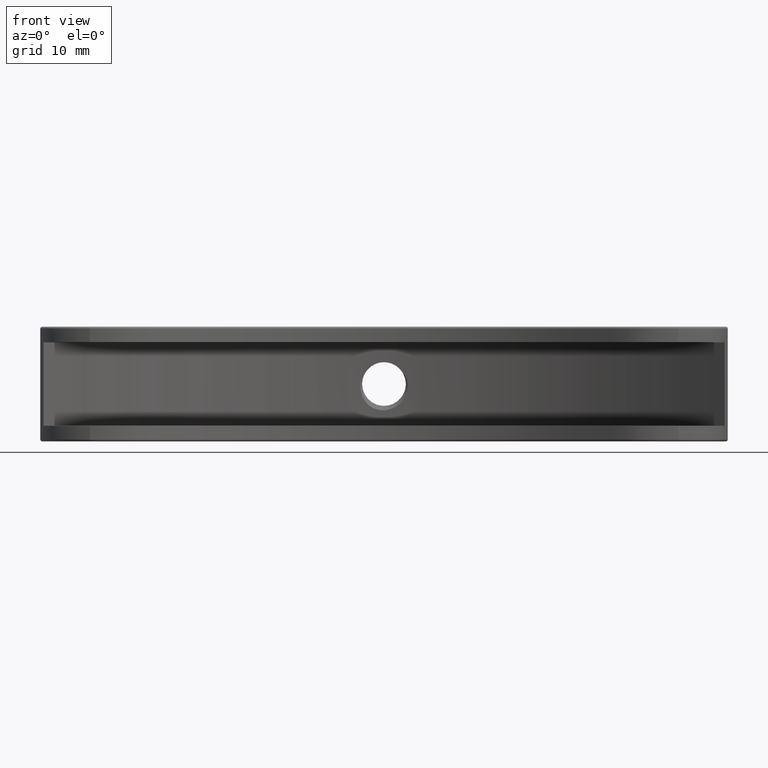
[diagram: clean part render]
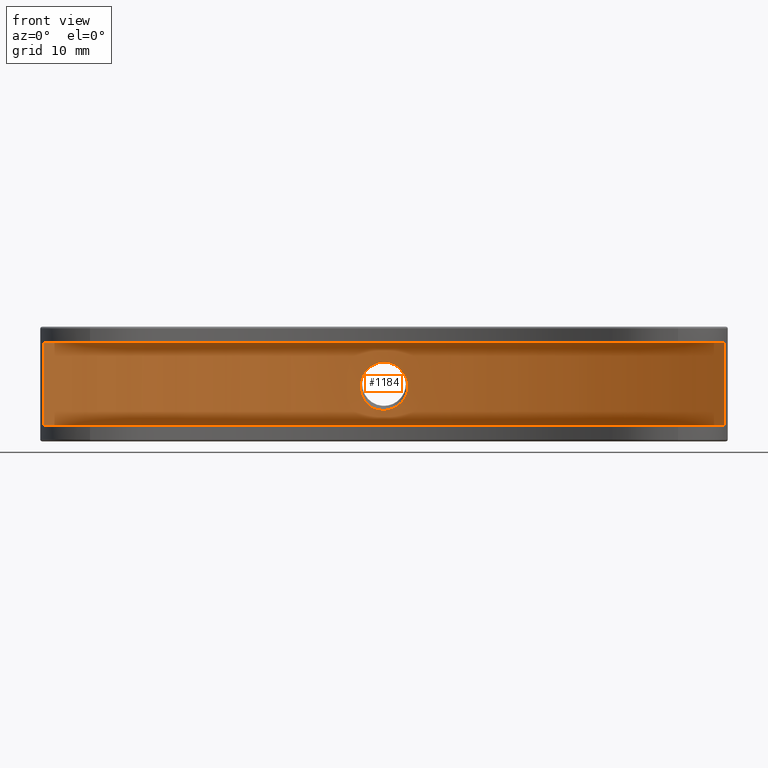
[diagram: same view with one face highlighted and labeled with its STEP entity id]
A machine part, front view. The second image highlights one B-rep face of the part: STEP entity #1184.
In plain terms, the highlighted cylindrical surface (partial cylindrical patch) has radius 47.3818 mm, axis along (0, 0, -1).
Its self-contained STEP definition (entity closure, byte-faithful):
#43 = CARTESIAN_POINT ( 'NONE',  ( 2.003208782141407518, 1.613770401412911504, 4.172705104345269866 ) ) ;
#66 = CARTESIAN_POINT ( 'NONE',  ( 1.080399062459326265, 1.643748688884738574, 3.282363655833562266 ) ) ;
#110 = CARTESIAN_POINT ( 'NONE',  ( 2.164596313432331165, 1.606740315395996710, 6.046127248822068978 ) ) ;
#305 = CARTESIAN_POINT ( 'NONE',  ( -1.412161609660580686, 1.633836145798569950, 3.397155990910849077 ) ) ;
#435 = CARTESIAN_POINT ( 'NONE',  ( 1.883150126498287502, 1.618782318151062105, 3.989095579389171142 ) ) ;
#452 = CARTESIAN_POINT ( 'NONE',  ( -2.204280832581388072, 1.603355851728642811, 5.880867530900515838 ) ) ;
#497 = CARTESIAN_POINT ( 'NONE',  ( -2.077175813249977576, 1.609147814969129398, 6.248217368489441981 ) ) ;
#526 = VECTOR ( 'NONE', #4662, 1000.000000000000000 ) ;
#644 = CARTESIAN_POINT ( 'NONE',  ( 0.5730898091697756991, 1.652251590053877450, 7.524123711443365004 ) ) ;
#667 = VERTEX_POINT ( 'NONE', #3248 ) ;
#674 = DIRECTION ( 'NONE',  ( -1.000000000000000000, 0.0000000000000000000, 0.0000000000000000000 ) ) ;
#689 = CARTESIAN_POINT ( 'NONE',  ( 1.609230318828301920, 1.628638546648371710, 6.854981482166792262 ) ) ;
#766 = CARTESIAN_POINT ( 'NONE',  ( 1.683856406389163007, 1.626010280474508019, 6.754841664379284794 ) ) ;
#858 = CARTESIAN_POINT ( 'NONE',  ( 0.01614376725674970814, -45.72644993527441670, 9.500000000000000000 ) ) ;
#905 = EDGE_LOOP ( 'NONE', ( #3154, #2154, #1755, #978 ) ) ;
#913 = AXIS2_PLACEMENT_3D ( 'NONE', #1771, #2957, #674 ) ;
#978 = ORIENTED_EDGE ( 'NONE', *, *, #1131, .T. ) ;
#1074 = CARTESIAN_POINT ( 'NONE',  ( 1.683856406389163007, 1.626010280474508019, 6.754841664379284794 ) ) ;
#1109 = DIRECTION ( 'NONE',  ( -1.000000000000000000, 0.0000000000000000000, 0.0000000000000000000 ) ) ;
#1131 = EDGE_CURVE ( 'NONE', #4232, #3238, #2970, .T. ) ;
#1136 = CARTESIAN_POINT ( 'NONE',  ( 1.964846097767909860, 1.615384702563493979, 6.429457059379808825 ) ) ;
#1184 = ADVANCED_FACE ( 'NONE', ( #1981, #1738 ), #3437, .F. ) ;
#1225 = CARTESIAN_POINT ( 'NONE',  ( -1.918656132733456587, 1.615985613927544584, 3.987745131208958682 ) ) ;
#1226 = CARTESIAN_POINT ( 'NONE',  ( -1.412161609660580686, 1.633836145798569950, 3.397155990910849077 ) ) ;
#1270 = CARTESIAN_POINT ( 'NONE',  ( -32.66673148217365963, -11.42096321141382553, 9.500000000000000000 ) ) ;
#1336 = EDGE_CURVE ( 'NONE', #2851, #1614, #1777, .T. ) ;
#1350 = CARTESIAN_POINT ( 'NONE',  ( -32.66673148217365963, -11.42096321141382553, 9.500000000000000000 ) ) ;
#1379 = ORIENTED_EDGE ( 'NONE', *, *, #2575, .T. ) ;
#1387 = CARTESIAN_POINT ( 'NONE',  ( 0.6941096699892242983, 1.650658621677216997, 7.485907067961020900 ) ) ;
#1483 = AXIS2_PLACEMENT_3D ( 'NONE', #3025, #4515, #1109 ) ;
#1542 = CARTESIAN_POINT ( 'NONE',  ( -1.412161609660580686, 1.633836145798569950, 3.397155990910849077 ) ) ;
#1547 = CARTESIAN_POINT ( 'NONE',  ( 0.8863570808049326955, 1.647810383254833200, 3.184061185903565683 ) ) ;
#1568 = CARTESIAN_POINT ( 'NONE',  ( -2.160141166703392734, 1.605419388627506549, 4.523641551925366322 ) ) ;
#1579 = B_SPLINE_CURVE_WITH_KNOTS ( 'NONE', 3,
 ( #1074, #689, #1742, #3245, #2576, #2502, #2199, #1387, #644, #2176, #4041, #3636, #4410, #3704, #2531, #2903 ),
 .UNSPECIFIED., .F., .F.,
 ( 4, 2, 2, 2, 2, 2, 2, 4 ),
 ( 0.007904911597533712322, 0.008277923008780430775, 0.008650934420027150962, 0.009023945831273869414, 0.009396957242520587866, 0.009769968653767308053, 0.01014298006501402651, 0.01088900288750746514 ),
 .UNSPECIFIED. ) ;
#1614 = VERTEX_POINT ( 'NONE', #4655 ) ;
#1714 = VECTOR ( 'NONE', #4305, 1000.000000000000000 ) ;
#1738 = FACE_BOUND ( 'NONE', #905, .T. ) ;
#1742 = CARTESIAN_POINT ( 'NONE',  ( 1.526380180256626806, 1.631381902130047079, 6.947660141997410221 ) ) ;
#1755 = ORIENTED_EDGE ( 'NONE', *, *, #2386, .T. ) ;
#1771 = CARTESIAN_POINT ( 'NONE',  ( 0.01614376725674970814, -45.72644993527441670, 9.500000000000000000 ) ) ;
#1777 = LINE ( 'NONE', #3282, #1714 ) ;
#1798 = B_SPLINE_CURVE_WITH_KNOTS ( 'NONE', 3,
 ( #4363, #4020, #4091, #305 ),
 .UNSPECIFIED., .F., .F.,
 ( 4, 4 ),
 ( 2.160030608311603118E-17, 0.001555606541213876409 ),
 .UNSPECIFIED. ) ;
#1943 = CARTESIAN_POINT ( 'NONE',  ( 0.05632483958927218121, 1.655351839375653666, 2.967613605547814615 ) ) ;
#1981 = FACE_OUTER_BOUND ( 'NONE', #4619, .T. ) ;
#2006 = CARTESIAN_POINT ( 'NONE',  ( -2.270644348785560762, 1.600162237486698169, 5.101953820065209477 ) ) ;
#2019 = LINE ( 'NONE', #1350, #526 ) ;
#2058 = VERTEX_POINT ( 'NONE', #1270 ) ;
#2079 = CARTESIAN_POINT ( 'NONE',  ( -32.66673148217365963, -11.42096321141382553, 1.499999999999999556 ) ) ;
#2100 = DIRECTION ( 'NONE',  ( -1.000000000000000000, 0.0000000000000000000, 0.0000000000000000000 ) ) ;
#2154 = ORIENTED_EDGE ( 'NONE', *, *, #3388, .T. ) ;
#2176 = CARTESIAN_POINT ( 'NONE',  ( 0.3298455679108944216, 1.654486508616333174, 7.577669518939682547 ) ) ;
#2199 = CARTESIAN_POINT ( 'NONE',  ( 0.9247203717676717449, 1.646797172520326091, 7.389578617202246846 ) ) ;
#2255 = CARTESIAN_POINT ( 'NONE',  ( 2.233267805296411002, 1.603480875592819155, 5.841115142505738156 ) ) ;
#2269 = VERTEX_POINT ( 'NONE', #4339 ) ;
#2323 = CARTESIAN_POINT ( 'NONE',  ( -2.245188710090013640, 1.601378916367902860, 5.685817651614820001 ) ) ;
#2386 = EDGE_CURVE ( 'NONE', #2269, #4232, #1798, .T. ) ;
#2494 = DIRECTION ( 'NONE',  ( 0.0000000000000000000, 0.0000000000000000000, -1.000000000000000000 ) ) ;
#2502 = CARTESIAN_POINT ( 'NONE',  ( 1.034718247703019456, 1.644535215033548825, 7.331639296734855371 ) ) ;
#2531 = CARTESIAN_POINT ( 'NONE',  ( -0.7826909609314324223, 1.649138927853586623, 7.464493429025515603 ) ) ;
#2575 = EDGE_CURVE ( 'NONE', #2058, #4313, #2019, .T. ) ;
#2576 = CARTESIAN_POINT ( 'NONE',  ( 1.244174535780337987, 1.639568142187757704, 7.196341383680993076 ) ) ;
#2587 = CIRCLE ( 'NONE', #1483, 47.38181881197477452 ) ;
#2727 = CARTESIAN_POINT ( 'NONE',  ( -1.001279796494483065, 1.644444116059794458, 7.345924908855169910 ) ) ;
#2851 = VERTEX_POINT ( 'NONE', #4759 ) ;
#2871 = CARTESIAN_POINT ( 'NONE',  ( -1.691663696610031797, 1.624717400385901067, 3.671079527468824377 ) ) ;
#2903 = CARTESIAN_POINT ( 'NONE',  ( -1.001279796494483065, 1.644444116059794458, 7.345924908855169910 ) ) ;
#2913 = EDGE_CURVE ( 'NONE', #2851, #2058, #3500, .T. ) ;
#2957 = DIRECTION ( 'NONE',  ( 0.0000000000000000000, 0.0000000000000000000, 1.000000000000000000 ) ) ;
#2970 = B_SPLINE_CURVE_WITH_KNOTS ( 'NONE', 3,
 ( #1542, #4213, #2871, #1225, #3505, #1568, #3849, #2006, #3828, #2323, #452, #497, #3461, #3893, #4721, #4624, #4262, #2727 ),
 .UNSPECIFIED., .F., .F.,
 ( 4, 2, 2, 2, 2, 2, 2, 2, 4 ),
 ( 5.365913605974423497E-17, 0.0005834824253721766860, 0.001166964850744298728, 0.001750447276116420554, 0.002333929701488542813, 0.002917412126860665072, 0.003500894552232786464, 0.004084376977604909156, 0.004667859402977030982 ),
 .UNSPECIFIED. ) ;
#3025 = CARTESIAN_POINT ( 'NONE',  ( 0.01614376725674970814, -45.72644993527441670, 1.499999999999999556 ) ) ;
#3036 = ORIENTED_EDGE ( 'NONE', *, *, #4036, .F. ) ;
#3053 = CARTESIAN_POINT ( 'NONE',  ( 0.4811417949233898761, 1.653520397906646844, 3.037924907903118754 ) ) ;
#3154 = ORIENTED_EDGE ( 'NONE', *, *, #4754, .F. ) ;
#3238 = VERTEX_POINT ( 'NONE', #3811 ) ;
#3245 = CARTESIAN_POINT ( 'NONE',  ( 1.344292408227892865, 1.636838290423311415, 7.118157675441136867 ) ) ;
#3248 = CARTESIAN_POINT ( 'NONE',  ( 1.683856406389163007, 1.626010280474508019, 6.754841664379284794 ) ) ;
#3282 = CARTESIAN_POINT ( 'NONE',  ( 32.67521339037512718, -11.39829931099649762, 9.500000000000000000 ) ) ;
#3388 = EDGE_CURVE ( 'NONE', #667, #2269, #4022, .T. ) ;
#3397 = CARTESIAN_POINT ( 'NONE',  ( 2.273530830308602368, 1.601908344440815979, 4.756826158184024322 ) ) ;
#3420 = CARTESIAN_POINT ( 'NONE',  ( 1.435822086665477171, 1.634429179191537740, 3.522421045653776339 ) ) ;
#3437 = CYLINDRICAL_SURFACE ( 'NONE', #4064, 47.38181881197477452 ) ;
#3461 = CARTESIAN_POINT ( 'NONE',  ( -1.989552911471447638, 1.613024310813696127, 6.425680597109407977 ) ) ;
#3500 = CIRCLE ( 'NONE', #913, 47.38181881197477452 ) ;
#3505 = CARTESIAN_POINT ( 'NONE',  ( -2.014464793272378706, 1.611892860841879660, 4.162574117918434347 ) ) ;
#3636 = CARTESIAN_POINT ( 'NONE',  ( -0.04383576093523166434, 1.655496204501657909, 7.603274952186297675 ) ) ;
#3704 = CARTESIAN_POINT ( 'NONE',  ( -0.5398350437360053267, 1.652747608393334122, 7.544627824758110890 ) ) ;
#3763 = CARTESIAN_POINT ( 'NONE',  ( 2.338603221173921387, 1.598468221428440250, 5.203875064153577590 ) ) ;
#3811 = CARTESIAN_POINT ( 'NONE',  ( -1.001279796494483065, 1.644444116059794458, 7.345924908855169910 ) ) ;
#3828 = CARTESIAN_POINT ( 'NONE',  ( -2.277054986846313245, 1.599845586957519217, 5.296598965168735518 ) ) ;
#3849 = CARTESIAN_POINT ( 'NONE',  ( -2.211865345817544792, 1.602965812552755276, 4.712589895278194163 ) ) ;
#3893 = CARTESIAN_POINT ( 'NONE',  ( -1.771671447336713223, 1.621753386726821899, 6.751621220078237506 ) ) ;
#4020 = CARTESIAN_POINT ( 'NONE',  ( -0.4624885261556588856, 1.655791807392809289, 2.956074260814972376 ) ) ;
#4022 = B_SPLINE_CURVE_WITH_KNOTS ( 'NONE', 3,
 ( #766, #4496, #1136, #110, #2255, #3763, #3397, #43, #435, #4195, #3420, #66, #1547, #3053, #4543, #1943 ),
 .UNSPECIFIED., .F., .F.,
 ( 4, 2, 2, 2, 2, 2, 2, 4 ),
 ( 5.524496821160234993E-17, 0.0006422765409509965636, 0.001284553081901937833, 0.002569106163803817986, 0.003211382704754757629, 0.003853659245705696405, 0.004495935786656636048, 0.005138212327607575257 ),
 .UNSPECIFIED. ) ;
#4036 = EDGE_CURVE ( 'NONE', #1614, #4313, #2587, .T. ) ;
#4041 = CARTESIAN_POINT ( 'NONE',  ( 0.2064726568259349360, 1.655151899723081632, 7.593574966514045066 ) ) ;
#4064 = AXIS2_PLACEMENT_3D ( 'NONE', #858, #2494, #2100 ) ;
#4091 = CARTESIAN_POINT ( 'NONE',  ( -0.9814852268173268612, 1.646824610274336242, 3.107935938729166292 ) ) ;
#4185 = ORIENTED_EDGE ( 'NONE', *, *, #2913, .T. ) ;
#4195 = CARTESIAN_POINT ( 'NONE',  ( 1.600665115244773062, 1.629077957190457893, 3.666585971986858539 ) ) ;
#4213 = CARTESIAN_POINT ( 'NONE',  ( -1.560744963470853675, 1.629355125502271129, 3.526932577503658184 ) ) ;
#4232 = VERTEX_POINT ( 'NONE', #1226 ) ;
#4262 = CARTESIAN_POINT ( 'NONE',  ( -1.181562035825668433, 1.640572046467468903, 7.264557810648842207 ) ) ;
#4274 = ORIENTED_EDGE ( 'NONE', *, *, #1336, .F. ) ;
#4305 = DIRECTION ( 'NONE',  ( 0.0000000000000000000, 0.0000000000000000000, -1.000000000000000000 ) ) ;
#4313 = VERTEX_POINT ( 'NONE', #2079 ) ;
#4339 = CARTESIAN_POINT ( 'NONE',  ( 0.05632483958927218121, 1.655351839375653666, 2.967613605547814615 ) ) ;
#4363 = CARTESIAN_POINT ( 'NONE',  ( 0.05632483958927218121, 1.655351839375653666, 2.967613605547814615 ) ) ;
#4410 = CARTESIAN_POINT ( 'NONE',  ( -0.1702264071790953737, 1.655162528699692936, 7.596784246019133491 ) ) ;
#4496 = CARTESIAN_POINT ( 'NONE',  ( 1.837694197850752831, 1.620592246690672367, 6.601660201097128144 ) ) ;
#4515 = DIRECTION ( 'NONE',  ( 0.0000000000000000000, 0.0000000000000000000, 1.000000000000000000 ) ) ;
#4543 = CARTESIAN_POINT ( 'NONE',  ( 0.2720097498836815952, 1.655168932633574785, 2.990097981558165419 ) ) ;
#4619 = EDGE_LOOP ( 'NONE', ( #4274, #4185, #1379, #3036 ) ) ;
#4624 = CARTESIAN_POINT ( 'NONE',  ( -1.347764619355086069, 1.635965860804600824, 7.156993448384834089 ) ) ;
#4655 = CARTESIAN_POINT ( 'NONE',  ( 32.67521339037512718, -11.39829931099649762, 1.499999999999999556 ) ) ;
#4662 = DIRECTION ( 'NONE',  ( 0.0000000000000000000, 0.0000000000000000000, -1.000000000000000000 ) ) ;
#4721 = CARTESIAN_POINT ( 'NONE',  ( -1.643736756270205657, 1.626516949339700480, 6.898242155527970709 ) ) ;
#4754 = EDGE_CURVE ( 'NONE', #667, #3238, #1579, .T. ) ;
#4759 = CARTESIAN_POINT ( 'NONE',  ( 32.67521339037512718, -11.39829931099649762, 9.500000000000000000 ) ) ;